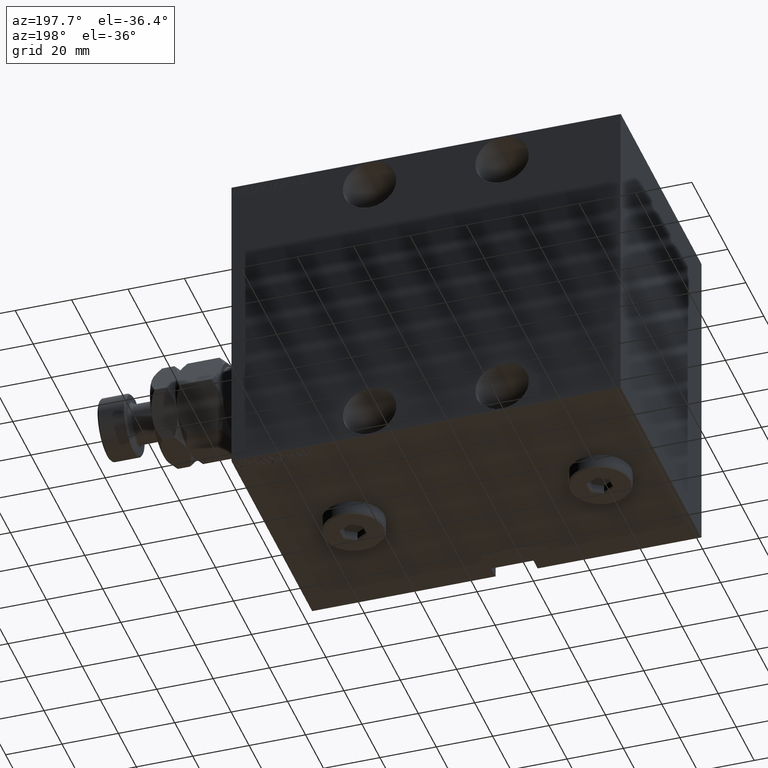
[diagram: clean part render]
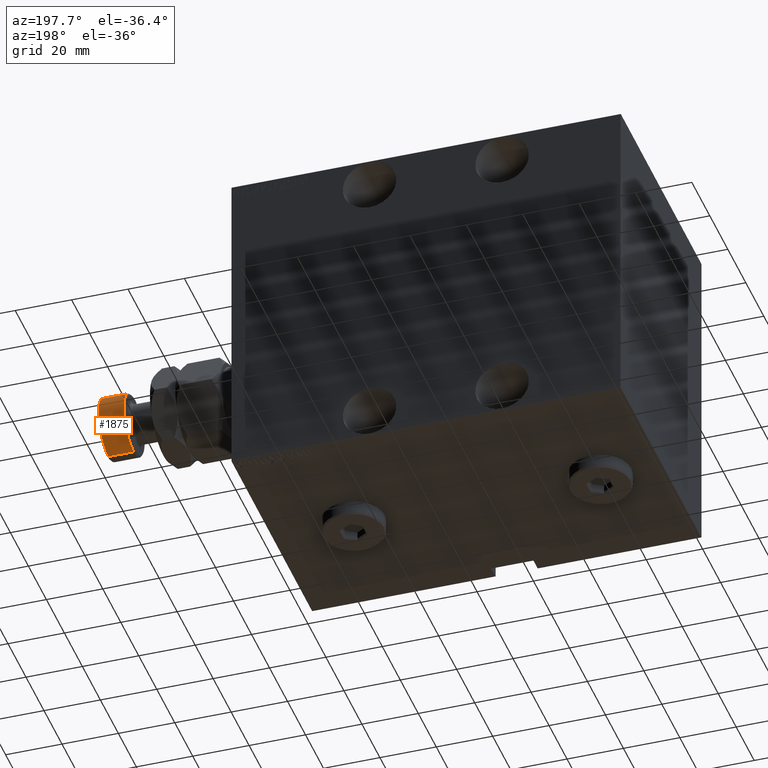
[diagram: same view with one face highlighted and labeled with its STEP entity id]
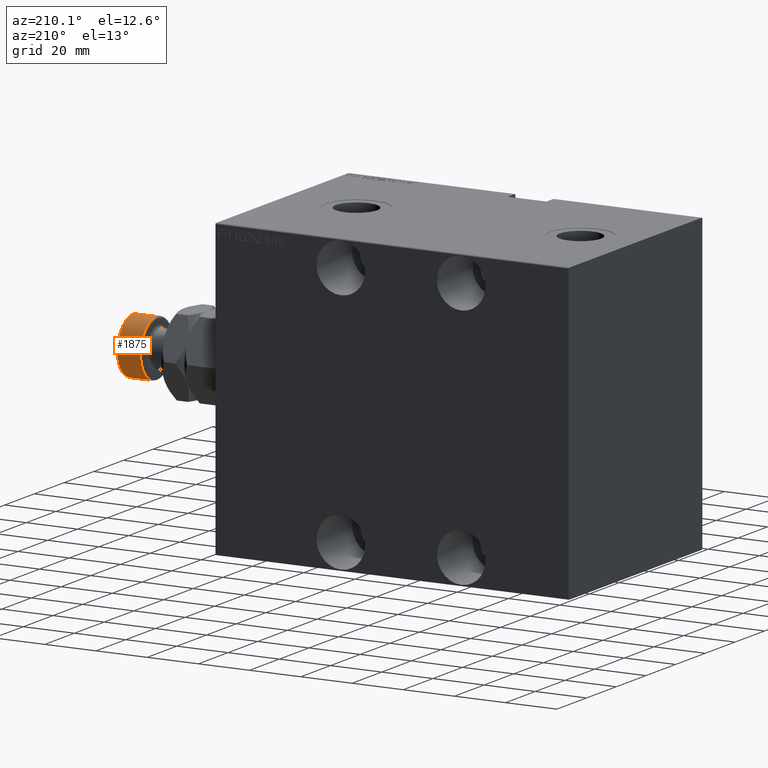
[diagram: same view with one face highlighted and labeled with its STEP entity id]
A machine part, auxiliary view. The second image highlights one B-rep face of the part: STEP entity #1875.
A second angle (auxiliary view) of the same face is appended — the face is thin or edge-on in the first view.
In plain terms, the highlighted cylindrical surface (edge-blend (fillet) strip) has radius 11 mm, axis along (-1, -0, 0).
Its self-contained STEP definition (entity closure, byte-faithful):
#730 = AXIS2_PLACEMENT_3D ( 'NONE', #1319, #26439, #43944 ) ;
#943 = VERTEX_POINT ( 'NONE', #37978 ) ;
#1319 = CARTESIAN_POINT ( 'NONE',  ( 0.000000000000000000, 0.000000000000000000, 35.50000000000001421 ) ) ;
#1333 = VECTOR ( 'NONE', #23115, 1000.000000000000000 ) ;
#1875 = ADVANCED_FACE ( 'NONE', ( #33810 ), #40333, .T. ) ;
#5396 = EDGE_CURVE ( 'NONE', #6543, #43624, #16375, .T. ) ;
#6543 = VERTEX_POINT ( 'NONE', #18641 ) ;
#6554 = EDGE_CURVE ( 'NONE', #32241, #943, #23032, .T. ) ;
#6676 = VECTOR ( 'NONE', #36550, 1000.000000000000000 ) ;
#7010 = EDGE_CURVE ( 'NONE', #943, #43624, #36432, .T. ) ;
#8431 = DIRECTION ( 'NONE',  ( -1.000000000000000000, 0.000000000000000000, 0.000000000000000000 ) ) ;
#12553 = CARTESIAN_POINT ( 'NONE',  ( 11.00000000000000000, 1.347111479062088405E-15, 45.00000000000000711 ) ) ;
#13448 = CARTESIAN_POINT ( 'NONE',  ( 0.000000000000000000, 0.000000000000000000, 44.50000000000001421 ) ) ;
#15899 = DIRECTION ( 'NONE',  ( -0.000000000000000000, -0.000000000000000000, -1.000000000000000000 ) ) ;
#16375 = LINE ( 'NONE', #34061, #1333 ) ;
#17843 = CARTESIAN_POINT ( 'NONE',  ( -11.00000000000000000, 0.000000000000000000, 35.50000000000001421 ) ) ;
#18641 = CARTESIAN_POINT ( 'NONE',  ( -11.00000000000000000, 0.000000000000000000, 44.50000000000001421 ) ) ;
#19992 = ORIENTED_EDGE ( 'NONE', *, *, #39826, .T. ) ;
#21494 = CARTESIAN_POINT ( 'NONE',  ( 11.00000000000000000, 1.347111479062088405E-15, 44.50000000000001421 ) ) ;
#23032 = LINE ( 'NONE', #12553, #6676 ) ;
#23115 = DIRECTION ( 'NONE',  ( -0.000000000000000000, -0.000000000000000000, -1.000000000000000000 ) ) ;
#25076 = CIRCLE ( 'NONE', #42935, 11.00000000000000000 ) ;
#25714 = ORIENTED_EDGE ( 'NONE', *, *, #6554, .T. ) ;
#26439 = DIRECTION ( 'NONE',  ( -0.000000000000000000, -0.000000000000000000, 1.000000000000000000 ) ) ;
#26811 = CARTESIAN_POINT ( 'NONE',  ( 0.000000000000000000, 0.000000000000000000, 45.00000000000000711 ) ) ;
#30979 = AXIS2_PLACEMENT_3D ( 'NONE', #26811, #15899, #8431 ) ;
#32241 = VERTEX_POINT ( 'NONE', #21494 ) ;
#33810 = FACE_OUTER_BOUND ( 'NONE', #37857, .T. ) ;
#34061 = CARTESIAN_POINT ( 'NONE',  ( -11.00000000000000000, 0.000000000000000000, 45.00000000000000711 ) ) ;
#36432 = CIRCLE ( 'NONE', #730, 11.00000000000000000 ) ;
#36550 = DIRECTION ( 'NONE',  ( -0.000000000000000000, -0.000000000000000000, -1.000000000000000000 ) ) ;
#37857 = EDGE_LOOP ( 'NONE', ( #19992, #25714, #43306, #41331 ) ) ;
#37978 = CARTESIAN_POINT ( 'NONE',  ( 11.00000000000000000, 1.347111479062088405E-15, 35.50000000000001421 ) ) ;
#38802 = DIRECTION ( 'NONE',  ( 0.000000000000000000, 0.000000000000000000, -1.000000000000000000 ) ) ;
#39826 = EDGE_CURVE ( 'NONE', #6543, #32241, #25076, .T. ) ;
#40333 = CYLINDRICAL_SURFACE ( 'NONE', #30979, 11.00000000000000000 ) ;
#41331 = ORIENTED_EDGE ( 'NONE', *, *, #5396, .F. ) ;
#41597 = DIRECTION ( 'NONE',  ( 1.000000000000000000, 0.000000000000000000, 0.000000000000000000 ) ) ;
#42935 = AXIS2_PLACEMENT_3D ( 'NONE', #13448, #38802, #41597 ) ;
#43306 = ORIENTED_EDGE ( 'NONE', *, *, #7010, .T. ) ;
#43624 = VERTEX_POINT ( 'NONE', #17843 ) ;
#43944 = DIRECTION ( 'NONE',  ( 1.000000000000000000, 0.000000000000000000, 0.000000000000000000 ) ) ;